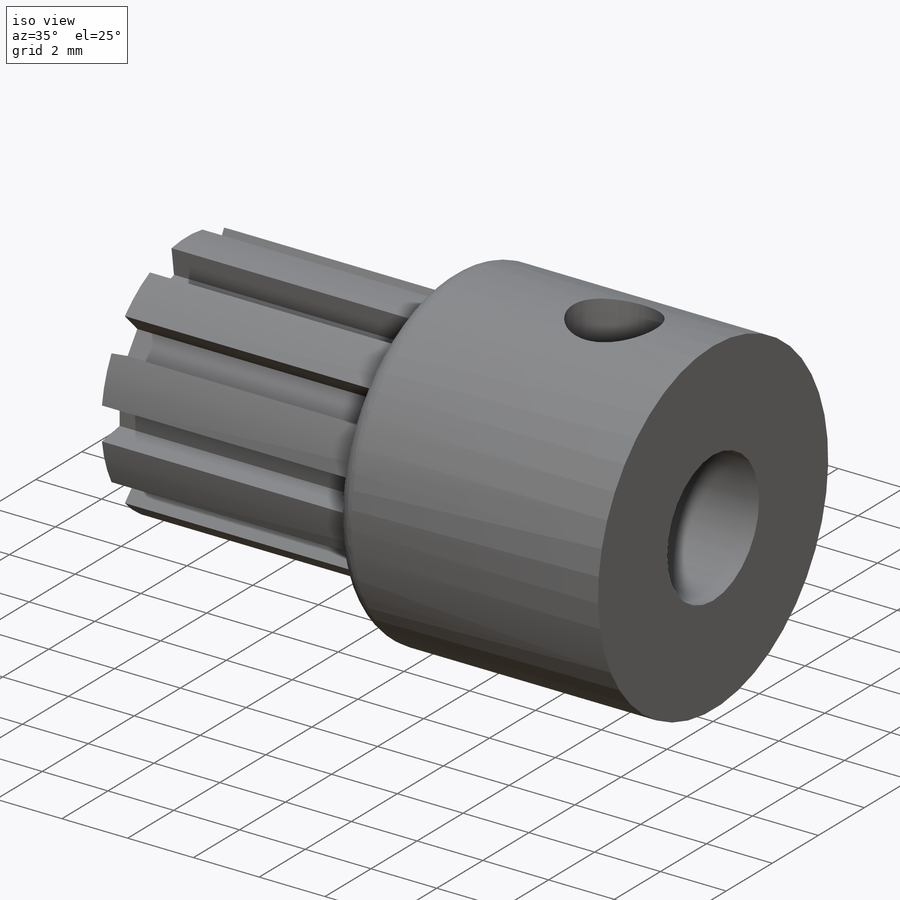
[diagram: iso view]
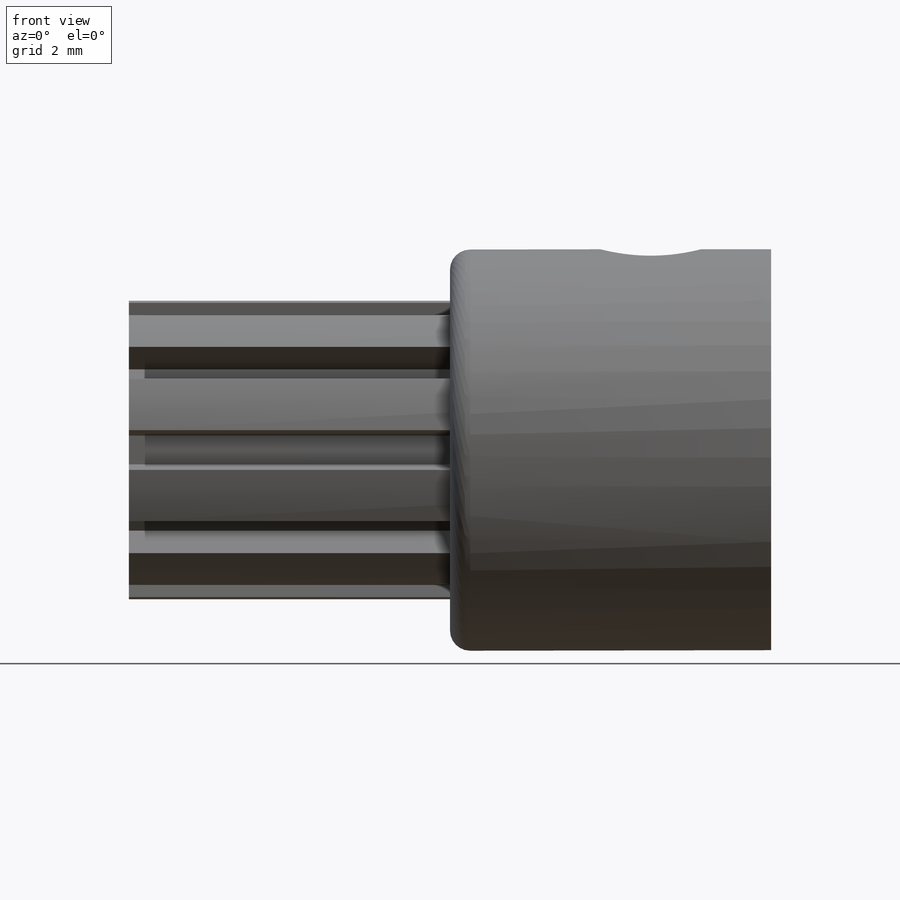
[diagram: front view]
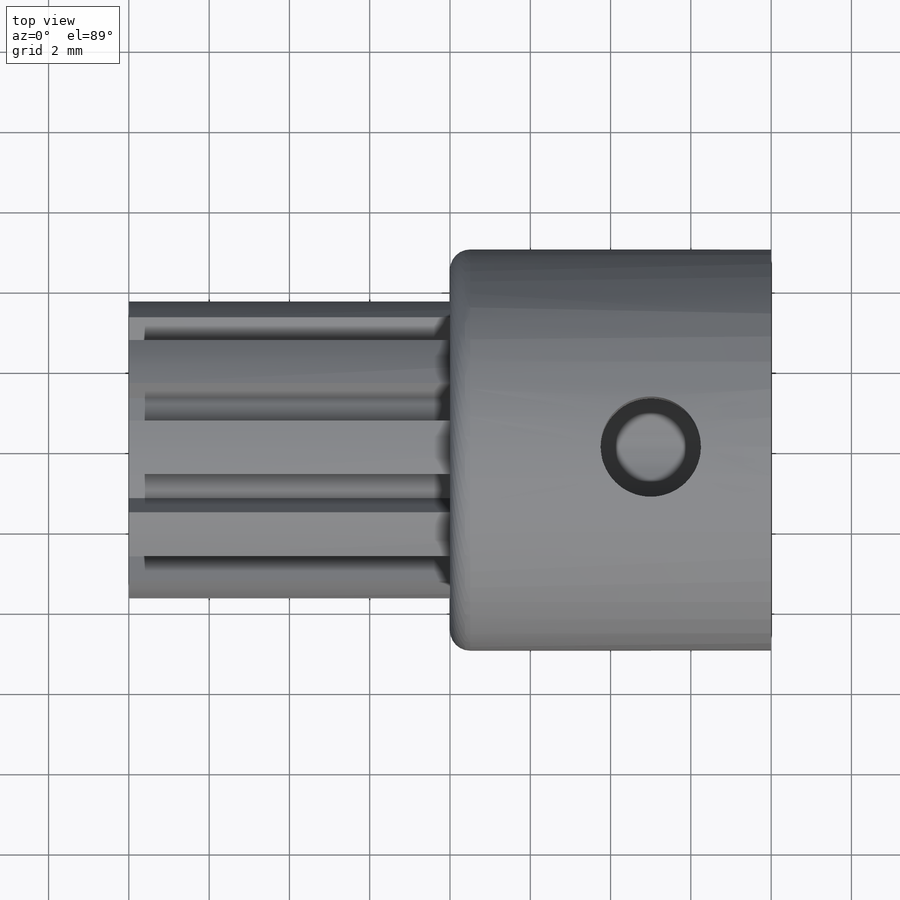
[diagram: top view]
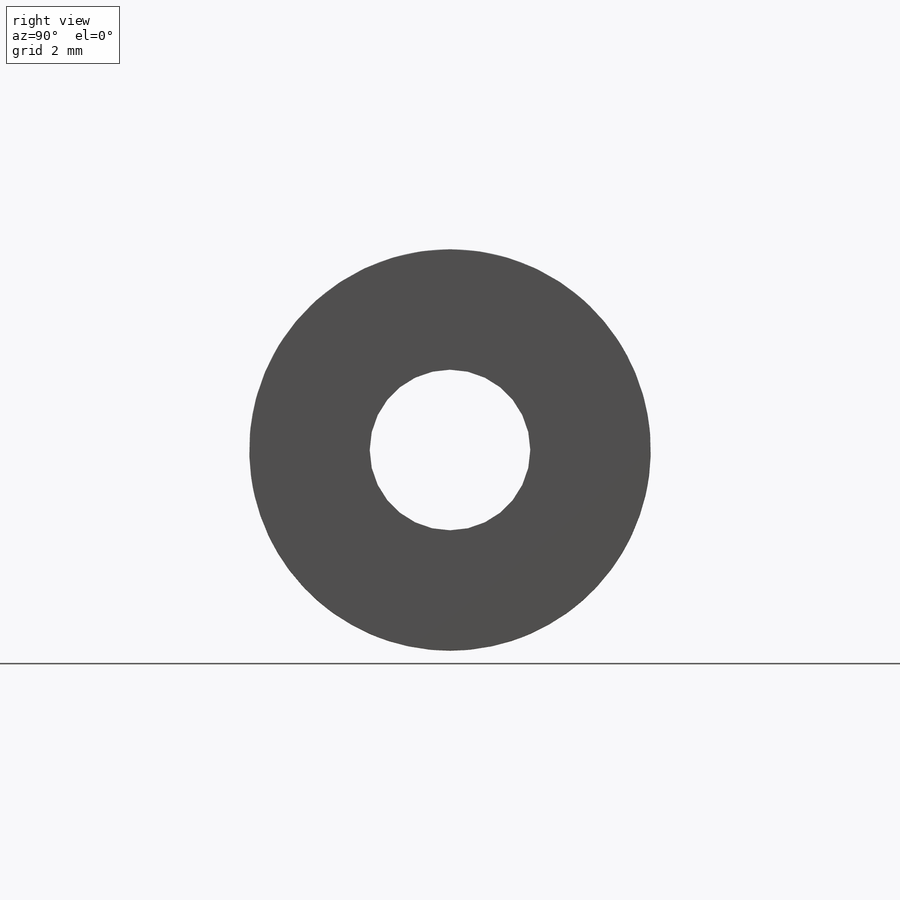
[diagram: right view]
SOLIDWORKS PART (.sldprt)
format: sldprt  version: not decoded by parser v0  size: 433,152 bytes
history: native  units: mm
features: sketch x5, plane x3, cut_extrude x2, material x1, revolve x1, fillet x1, pattern_circular x1, hole x1, thread x1 (+13 scaffold rows collapsed)
feature tree (29):
  scaffold x13  (default folders/planes/origin — collapsed)
  material  "3.1325 (EN-AW 2017A)"
  plane  "Plan de face"
  plane  "Plan de dessus"
  plane  "Plan de droite"
  sketch  "Esquisse1"  dims[D1=5.0mm D2=3.725mm D3=8.0mm D4=16.0mm]
  revolve  "Révolution1"  Angle=360deg
  sketch  "Esquisse2"  dims[D1=1.5mm]
  cut_extrude  "Enlèv. mat.-Extru.1"  [1 undecoded]
  fillet  "Congé1"  Radius=0.5mm
  sketch  "Esquisse3"  dims[c1.D1=0.8mm c1.D2=72.0deg c2.D2=0.5mm c2.D3=118.0deg]
  cut_extrude  "Enlèv. mat.-Extru.2"  Depth=8mm
  pattern_circular  "Répétition circulaire1"  Count=10 Angle=360deg
  hole  "Trou taraudé M31"  Diameter=2.5mm Depth=5mm
  sketch  "Esquisse5"  dims[D1=3.0mm]
  sketch  "Esquisse4"  dims[hole-wizard template sketch: 60 standard entries collapsed; hole parameters kept: c18.Profondeur du trou pour taraudage jusqu'au prochain=5.0mm]
  thread  "Filetage de perçage1"  Diameter=3mm  [1 undecoded]
decode coverage: 11 of 12 modeling features carry decoded parameters
note: ~ marks probable driven/reference dimensions
note: 2 parameter values undecoded
note: suppression state not decoded; provenance and decode notes live in map.json
